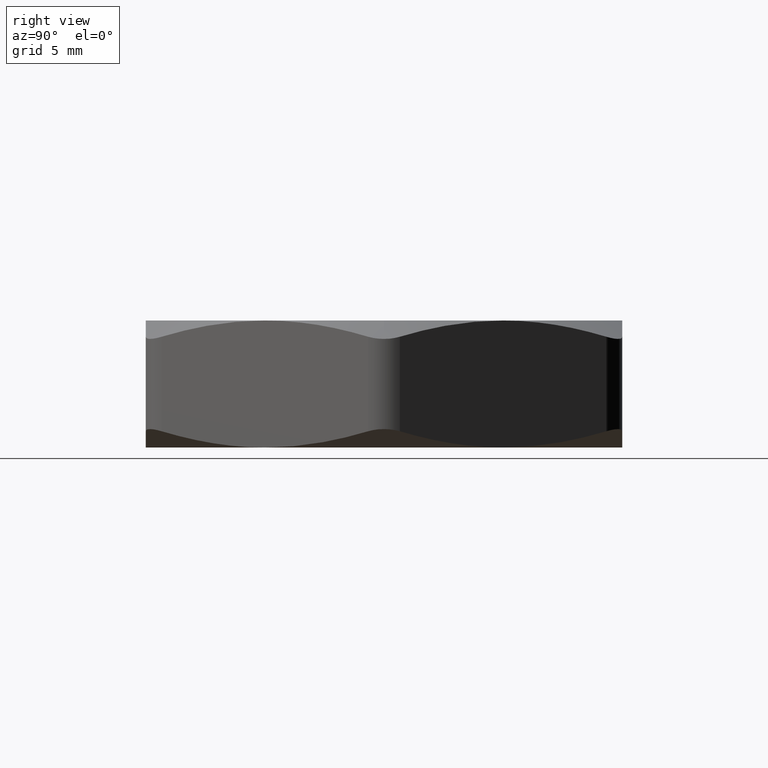
[diagram: clean part render]
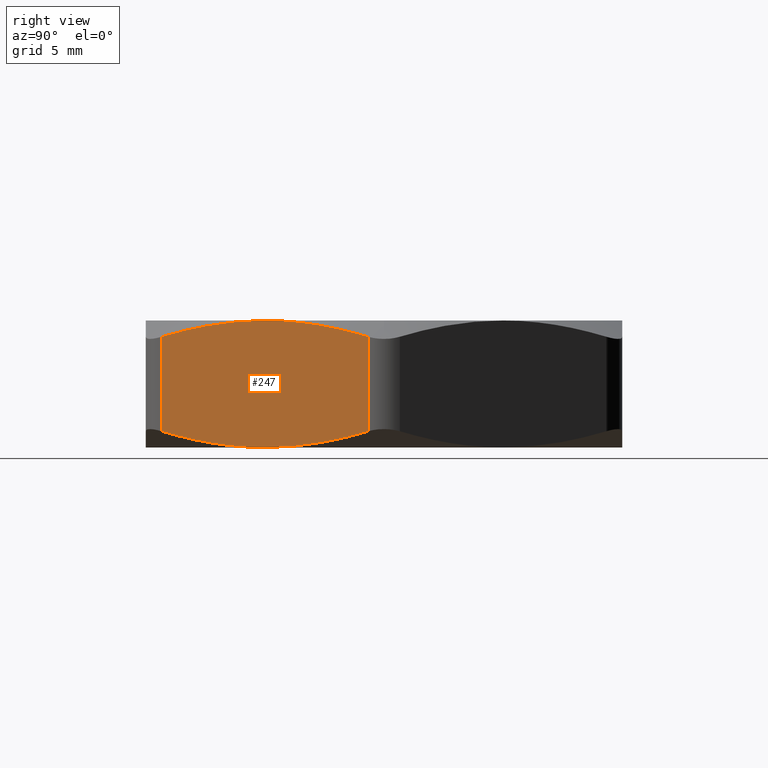
[diagram: same view with one face highlighted and labeled with its STEP entity id]
A machine part, right view. The second image highlights one B-rep face of the part: STEP entity #247.
In plain terms, the highlighted planar face has unit normal (-0.866, 0.5, 0).
Its self-contained STEP definition (entity closure, byte-faithful):
#243 = VERTEX_POINT ( 'NONE', #1185 ) ;
#247 = ADVANCED_FACE ( 'NONE', ( #1182 ), #1078, .F. ) ;
#251 = EDGE_CURVE ( 'NONE', #369, #252, #1386, .T. ) ;
#252 = VERTEX_POINT ( 'NONE', #1275 ) ;
#253 = ORIENTED_EDGE ( 'NONE', *, *, #251, .T. ) ;
#256 = ORIENTED_EDGE ( 'NONE', *, *, #376, .F. ) ;
#259 = ORIENTED_EDGE ( 'NONE', *, *, #260, .F. ) ;
#260 = EDGE_CURVE ( 'NONE', #378, #243, #1270, .T. ) ;
#263 = EDGE_LOOP ( 'NONE', ( #259, #264, #269, #267, #253, #256 ) ) ;
#264 = ORIENTED_EDGE ( 'NONE', *, *, #331, .T. ) ;
#267 = ORIENTED_EDGE ( 'NONE', *, *, #268, .F. ) ;
#268 = EDGE_CURVE ( 'NONE', #369, #270, #1375, .T. ) ;
#269 = ORIENTED_EDGE ( 'NONE', *, *, #367, .F. ) ;
#270 = VERTEX_POINT ( 'NONE', #1376 ) ;
#331 = EDGE_CURVE ( 'NONE', #378, #368, #1475, .T. ) ;
#367 = EDGE_CURVE ( 'NONE', #270, #368, #1478, .T. ) ;
#368 = VERTEX_POINT ( 'NONE', #1567 ) ;
#369 = VERTEX_POINT ( 'NONE', #1566 ) ;
#376 = EDGE_CURVE ( 'NONE', #243, #252, #1717, .T. ) ;
#378 = VERTEX_POINT ( 'NONE', #1593 ) ;
#1075 = DIRECTION ( 'NONE',  ( -0.8660254037844387100, 0.5000000000000001100, 0.0000000000000000000 ) ) ;
#1076 = CARTESIAN_POINT ( 'NONE',  ( 0.2165063509461096800, -0.3749999999999998900, 0.2000000000000000100 ) ) ;
#1077 = AXIS2_PLACEMENT_3D ( 'NONE', #1076, #1075, #1198 ) ;
#1078 = PLANE ( 'NONE',  #1077 ) ;
#1182 = FACE_OUTER_BOUND ( 'NONE', #263, .T. ) ;
#1185 = CARTESIAN_POINT ( 'NONE',  ( 0.3247595264191645600, -0.1875000000000000300, 0.0000000000000000000 ) ) ;
#1198 = DIRECTION ( 'NONE',  ( -0.5000000000000000000, -0.8660254037844386000, 0.0000000000000000000 ) ) ;
#1270 = B_SPLINE_CURVE_WITH_KNOTS ( 'NONE', 3,
 ( #1285, #1330, #1329, #1328, #1358, #1357 ),
 .UNSPECIFIED., .F., .F.,
 ( 4, 2, 4 ),
 ( 0.0007545642487503554900, 0.003159577114513165200, 0.005564589980275975000 ),
 .UNSPECIFIED. ) ;
#1275 = CARTESIAN_POINT ( 'NONE',  ( 0.2309401076758503000, -0.3499999999999999800, 0.02559096649278906600 ) ) ;
#1276 = DIRECTION ( 'NONE',  ( 0.0000000000000000000, 0.0000000000000000000, -1.000000000000000000 ) ) ;
#1285 = CARTESIAN_POINT ( 'NONE',  ( 0.4185789451624683500, -0.02500000000001776500, 0.02559096649278397700 ) ) ;
#1313 = CARTESIAN_POINT ( 'NONE',  ( 0.2617931203539620200, -0.2965610144749437100, 0.1887887220796289300 ) ) ;
#1316 = CARTESIAN_POINT ( 'NONE',  ( 0.3247595264191646100, -0.1875000000000000600, 0.2000000000000000100 ) ) ;
#1317 = CARTESIAN_POINT ( 'NONE',  ( 0.3088166142333530500, -0.2151139339264344400, 0.2000000000000003700 ) ) ;
#1318 = CARTESIAN_POINT ( 'NONE',  ( 0.2930444559197777900, -0.2424321134705665900, 0.1976226184107982000 ) ) ;
#1328 = CARTESIAN_POINT ( 'NONE',  ( 0.3564745969185511000, -0.1325678865294332400, 0.002377381589201827500 ) ) ;
#1329 = CARTESIAN_POINT ( 'NONE',  ( 0.3877259324843672100, -0.07843898552505605700, 0.01121127792037115100 ) ) ;
#1330 = CARTESIAN_POINT ( 'NONE',  ( 0.4032065323880963900, -0.05162579996015080600, 0.01764798529039907400 ) ) ;
#1357 = CARTESIAN_POINT ( 'NONE',  ( 0.3247595264191645600, -0.1875000000000000300, 0.0000000000000000000 ) ) ;
#1358 = CARTESIAN_POINT ( 'NONE',  ( 0.3407024386049761200, -0.1598860660735653700, -3.197382637115839200E-016 ) ) ;
#1375 = B_SPLINE_CURVE_WITH_KNOTS ( 'NONE', 3,
 ( #1420, #1419, #1313, #1318, #1317, #1316 ),
 .UNSPECIFIED., .F., .F.,
 ( 4, 2, 4 ),
 ( 0.0007545642487503559200, 0.003159577114513162600, 0.005564589980275969800 ),
 .UNSPECIFIED. ) ;
#1376 = CARTESIAN_POINT ( 'NONE',  ( 0.3247595264191646100, -0.1875000000000000600, 0.2000000000000000100 ) ) ;
#1384 = VECTOR ( 'NONE', #1276, 39.37007874015748100 ) ;
#1385 = CARTESIAN_POINT ( 'NONE',  ( 0.2309401076758503000, -0.3499999999999998700, 0.2000000000000000100 ) ) ;
#1386 = LINE ( 'NONE', #1385, #1384 ) ;
#1419 = CARTESIAN_POINT ( 'NONE',  ( 0.2463125204502325800, -0.3233742000398488500, 0.1823520147096010200 ) ) ;
#1420 = CARTESIAN_POINT ( 'NONE',  ( 0.2309401076758606800, -0.3499999999999819400, 0.1744090335072161200 ) ) ;
#1447 = VECTOR ( 'NONE', #1476, 39.37007874015748100 ) ;
#1448 = CARTESIAN_POINT ( 'NONE',  ( 0.4185789451624787300, -0.02499999999999980000, 0.2000000000000000100 ) ) ;
#1475 = LINE ( 'NONE', #1448, #1447 ) ;
#1476 = DIRECTION ( 'NONE',  ( 0.0000000000000000000, 0.0000000000000000000, 1.000000000000000000 ) ) ;
#1478 = B_SPLINE_CURVE_WITH_KNOTS ( 'NONE', 3,
 ( #1683, #1682, #1681, #1680, #1571, #1570, #1569, #1568 ),
 .UNSPECIFIED., .F., .F.,
 ( 4, 2, 2, 4 ),
 ( 0.005564589980275968900, 0.006762186791010763700, 0.007959783601745557700, 0.01035497722321514600 ),
 .UNSPECIFIED. ) ;
#1566 = CARTESIAN_POINT ( 'NONE',  ( 0.2309401076758606800, -0.3499999999999819400, 0.1744090335072161200 ) ) ;
#1567 = CARTESIAN_POINT ( 'NONE',  ( 0.4185789451624638600, -0.02500000000002559500, 0.1744090335072185400 ) ) ;
#1568 = CARTESIAN_POINT ( 'NONE',  ( 0.4185789451624638600, -0.02500000000002559500, 0.1744090335072185400 ) ) ;
#1569 = CARTESIAN_POINT ( 'NONE',  ( 0.4032407975228917700, -0.05156645100575724100, 0.1823343097906937900 ) ) ;
#1570 = CARTESIAN_POINT ( 'NONE',  ( 0.3877792148433143500, -0.07834669777221230100, 0.1887692090713163100 ) ) ;
#1571 = CARTESIAN_POINT ( 'NONE',  ( 0.3643367906226751600, -0.1189501675749424500, 0.1954024066271267400 ) ) ;
#1593 = CARTESIAN_POINT ( 'NONE',  ( 0.4185789451624683500, -0.02500000000001776500, 0.02559096649278397700 ) ) ;
#1596 = CARTESIAN_POINT ( 'NONE',  ( 0.2309401076758503000, -0.3499999999999999800, 0.02559096649278906600 ) ) ;
#1597 = CARTESIAN_POINT ( 'NONE',  ( 0.2462782553154248500, -0.3234335489942640800, 0.01766569020931162500 ) ) ;
#1598 = CARTESIAN_POINT ( 'NONE',  ( 0.2617398379950047200, -0.2966533022278049500, 0.01123079092868721500 ) ) ;
#1680 = CARTESIAN_POINT ( 'NONE',  ( 0.3564809560658898100, -0.1325568721631499000, 0.1971100618446679200 ) ) ;
#1681 = CARTESIAN_POINT ( 'NONE',  ( 0.3406768993189346900, -0.1599303014145780900, 0.1994098672810173700 ) ) ;
#1682 = CARTESIAN_POINT ( 'NONE',  ( 0.3326984364596713400, -0.1737494044531233400, 0.2000000000000004000 ) ) ;
#1683 = CARTESIAN_POINT ( 'NONE',  ( 0.3247595264191646100, -0.1875000000000000600, 0.2000000000000000100 ) ) ;
#1710 = CARTESIAN_POINT ( 'NONE',  ( 0.2851822622156475200, -0.2560498324250683500, 0.004597593372874768900 ) ) ;
#1711 = CARTESIAN_POINT ( 'NONE',  ( 0.2930380967724339800, -0.2424431278368587800, 0.002889938155333095700 ) ) ;
#1712 = CARTESIAN_POINT ( 'NONE',  ( 0.3088421535193917600, -0.2150696985854262700, 0.0005901327189828729600 ) ) ;
#1713 = CARTESIAN_POINT ( 'NONE',  ( 0.3168206163786564400, -0.2012505955468787400, -3.320936065051949100E-016 ) ) ;
#1714 = CARTESIAN_POINT ( 'NONE',  ( 0.3247595264191645600, -0.1875000000000000300, 0.0000000000000000000 ) ) ;
#1717 = B_SPLINE_CURVE_WITH_KNOTS ( 'NONE', 3,
 ( #1714, #1713, #1712, #1711, #1710, #1598, #1597, #1596 ),
 .UNSPECIFIED., .F., .F.,
 ( 4, 2, 2, 4 ),
 ( 0.005564589980275975000, 0.006762186791010961500, 0.007959783601745948000, 0.01035497722321592300 ),
 .UNSPECIFIED. ) ;